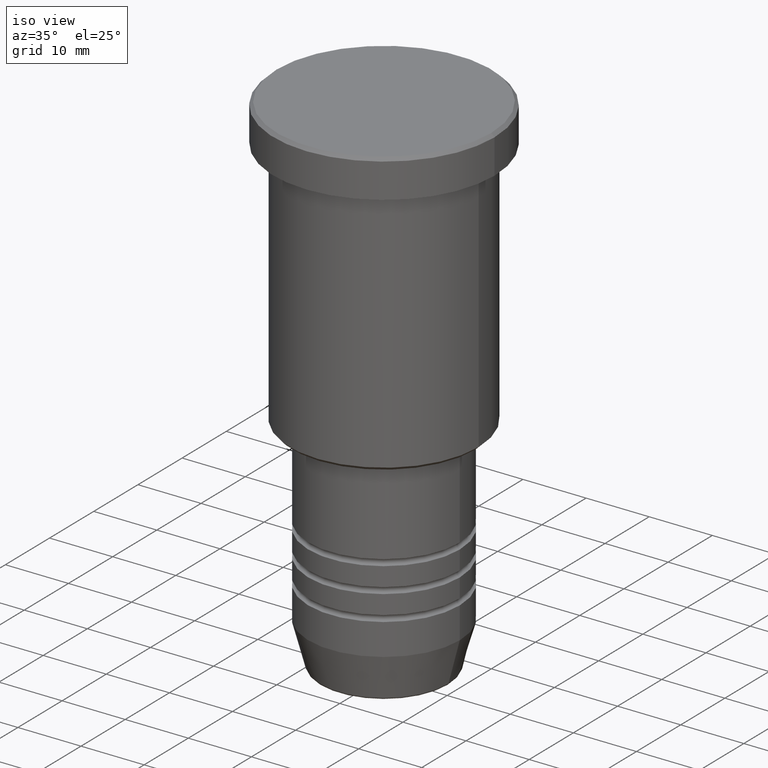
[diagram: clean part render]
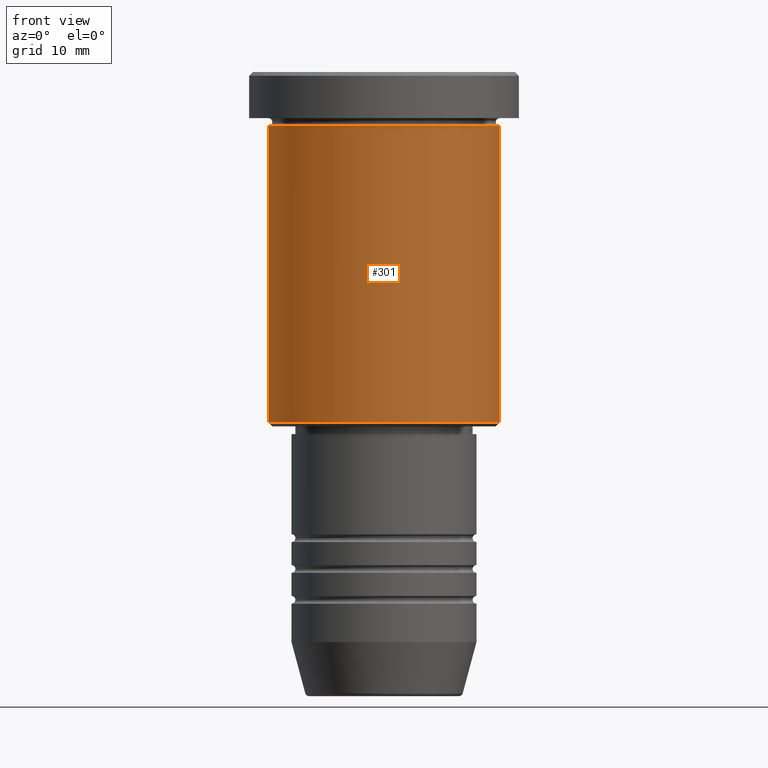
[diagram: tour spotlight — one face highlighted and labeled with its STEP entity id]
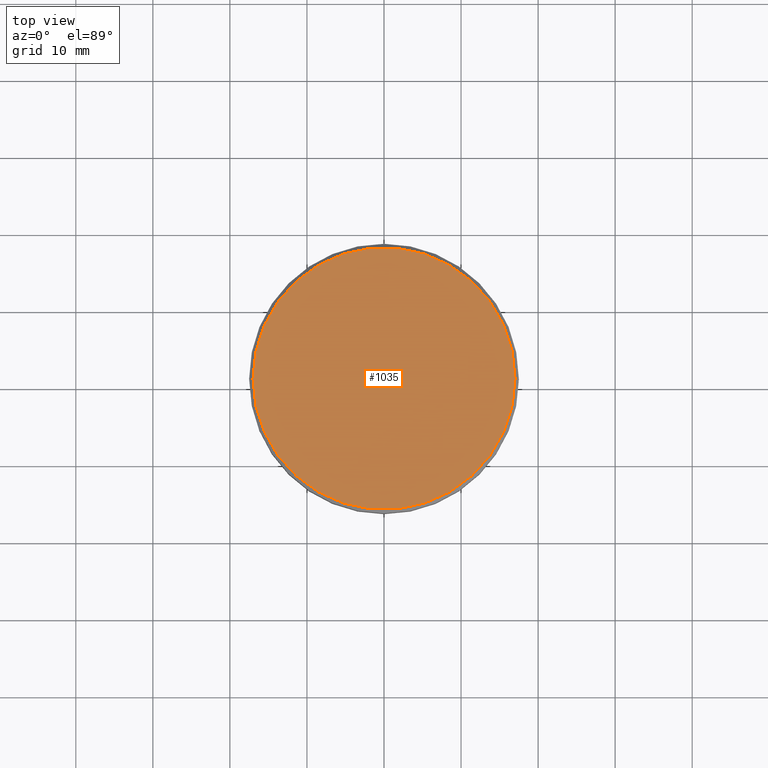
[diagram: tour spotlight — one face highlighted and labeled with its STEP entity id]
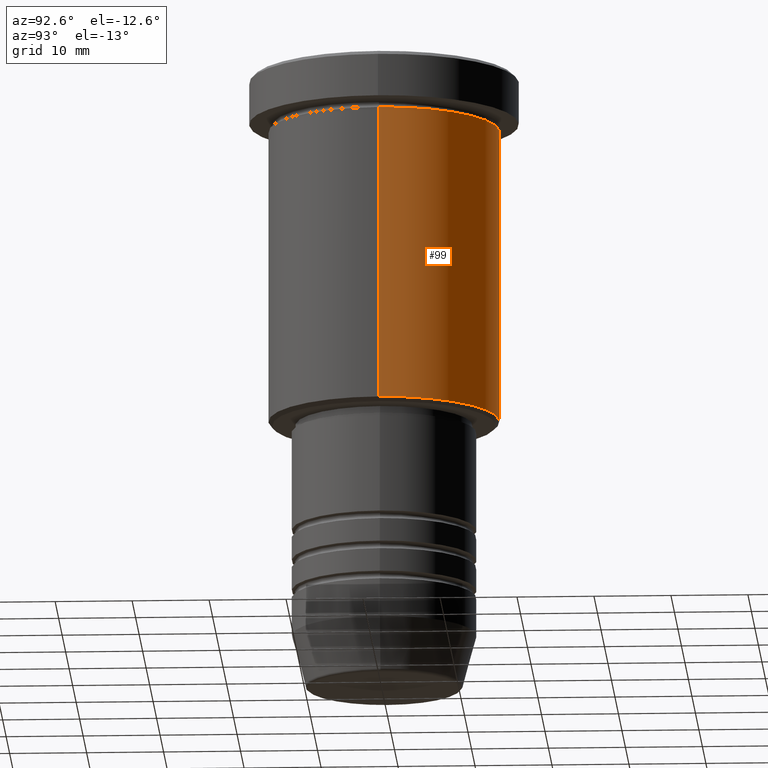
[diagram: tour spotlight — one face highlighted and labeled with its STEP entity id]
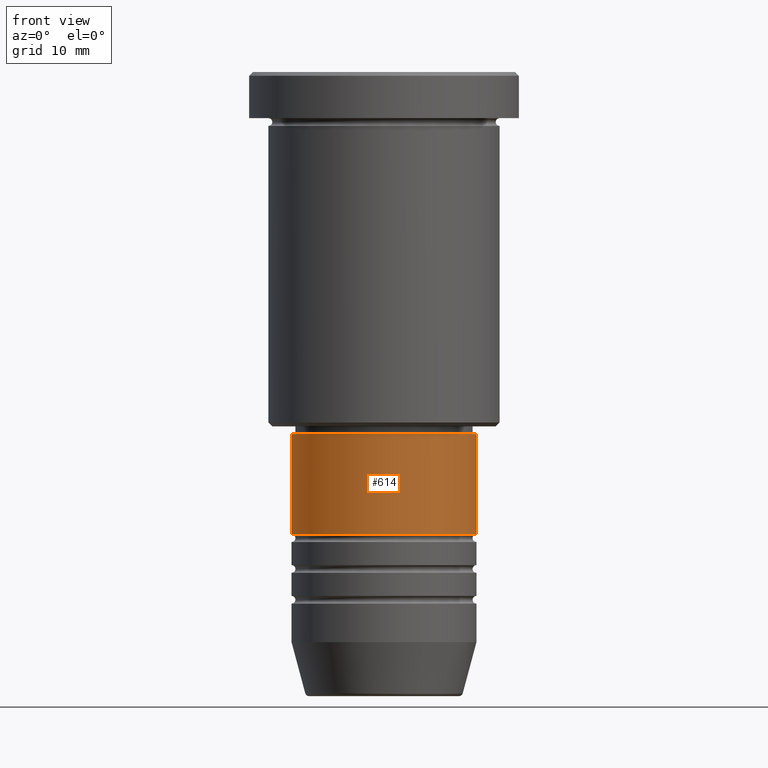
[diagram: tour spotlight — one face highlighted and labeled with its STEP entity id]
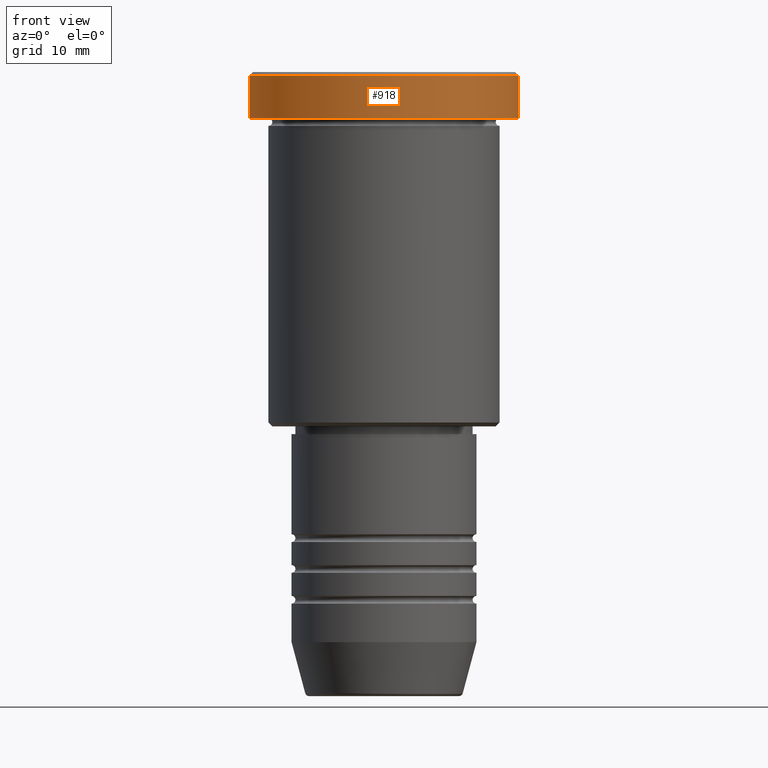
[diagram: tour spotlight — one face highlighted and labeled with its STEP entity id]
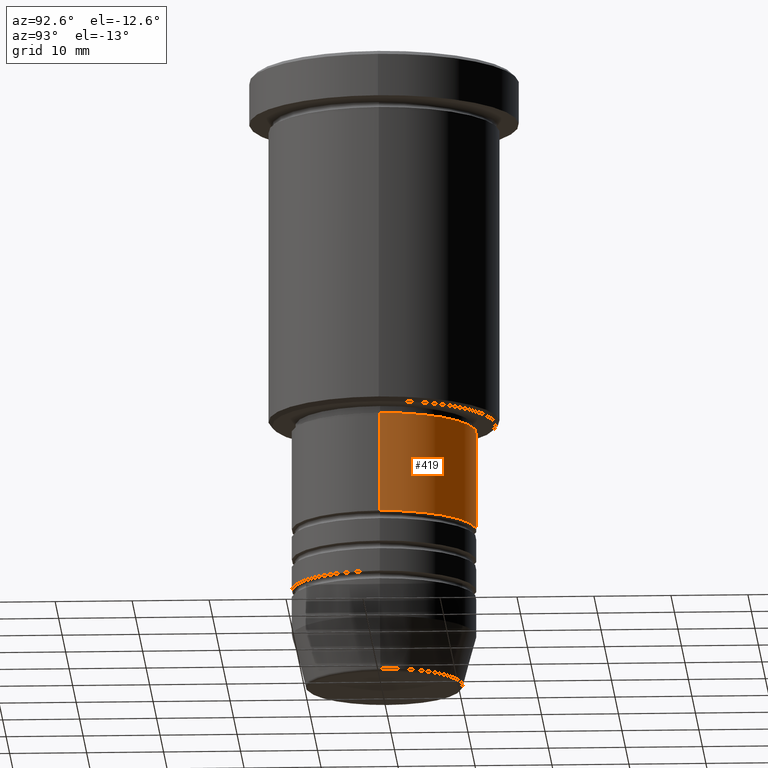
[diagram: tour spotlight — one face highlighted and labeled with its STEP entity id]
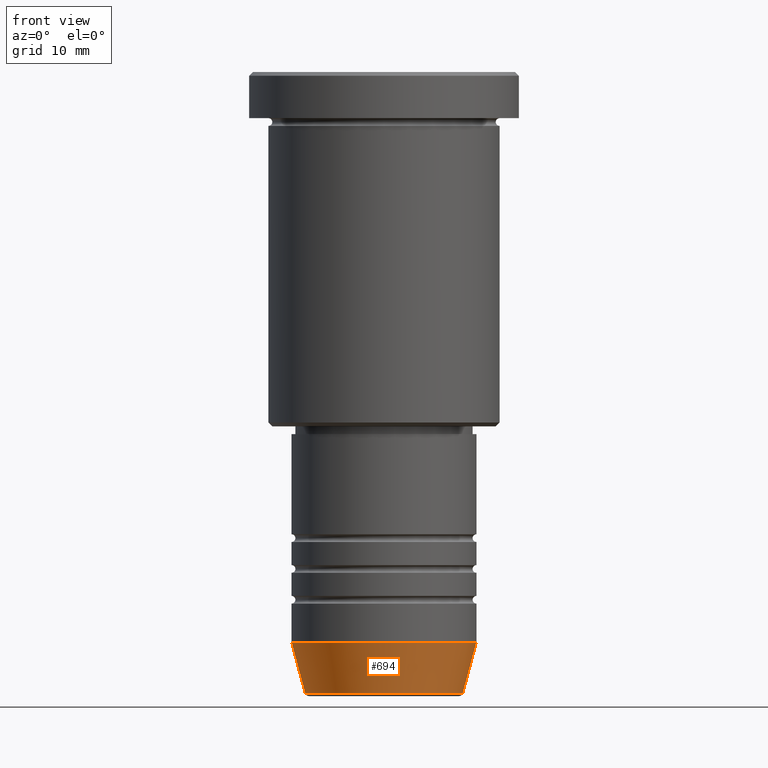
[diagram: tour spotlight — one face highlighted and labeled with its STEP entity id]
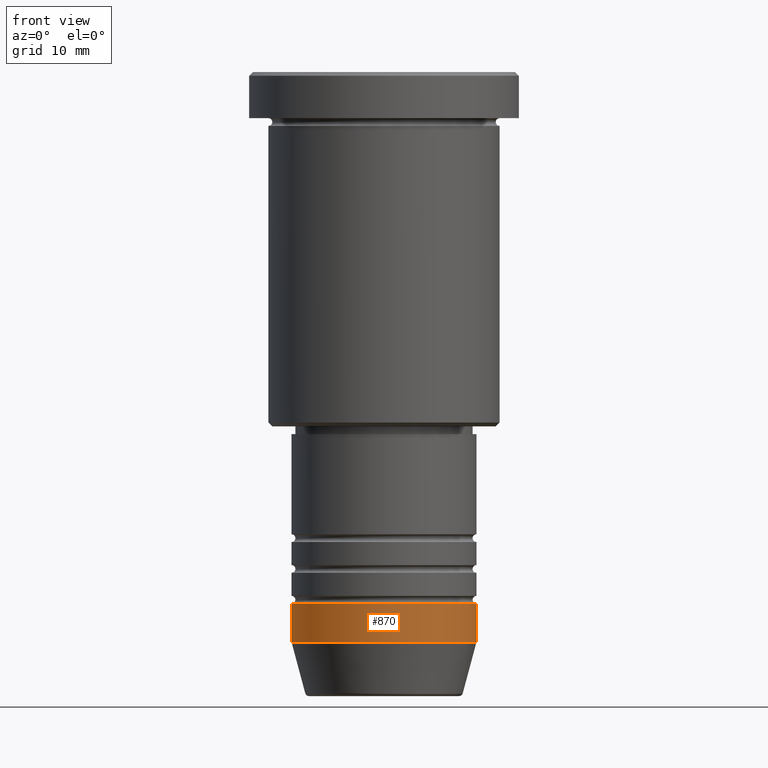
[diagram: tour spotlight — one face highlighted and labeled with its STEP entity id]
A machine part: a face-by-face anatomy tour. The part has 43 B-rep faces; the first image is the clean iso view, then the 8 largest visible faces are spotlighted one at a time (largest first), each with its STEP entity span.

Face 1 — front view, entity #301. In plain terms, the highlighted cylindrical surface (partial cylindrical patch) has radius 15 mm, axis along (-0, -0, 1).
Definition (entity closure, byte-faithful):
#29 = AXIS2_PLACEMENT_3D ( 'NONE', #166, #701, #1076 ) ;
#66 = FACE_OUTER_BOUND ( 'NONE', #305, .T. ) ;
#82 = ORIENTED_EDGE ( 'NONE', *, *, #225, .T. ) ;
#84 = DIRECTION ( 'NONE',  ( -0.000000000000000000, -0.000000000000000000, 1.000000000000000000 ) ) ;
#96 = DIRECTION ( 'NONE',  ( -0.000000000000000000, -0.000000000000000000, 1.000000000000000000 ) ) ;
#131 = VERTEX_POINT ( 'NONE', #860 ) ;
#166 = CARTESIAN_POINT ( 'NONE',  ( 0.000000000000000000, 0.000000000000000000, -45.50000000000000711 ) ) ;
#173 = CARTESIAN_POINT ( 'NONE',  ( 0.000000000000000000, 0.000000000000000000, 0.000000000000000000 ) ) ;
#181 = CIRCLE ( 'NONE', #627, 15.00000000000000000 ) ;
#225 = EDGE_CURVE ( 'NONE', #1039, #384, #814, .T. ) ;
#269 = VERTEX_POINT ( 'NONE', #906 ) ;
#286 = CARTESIAN_POINT ( 'NONE',  ( -15.00000000000000000, 1.836970198721029589E-15, 0.000000000000000000 ) ) ;
#301 = ADVANCED_FACE ( 'NONE', ( #66 ), #884, .T. ) ;
#305 = EDGE_LOOP ( 'NONE', ( #1003, #1173, #82, #850 ) ) ;
#384 = VERTEX_POINT ( 'NONE', #637 ) ;
#458 = EDGE_CURVE ( 'NONE', #269, #131, #845, .T. ) ;
#612 = DIRECTION ( 'NONE',  ( 1.000000000000000000, 0.000000000000000000, 0.000000000000000000 ) ) ;
#620 = VECTOR ( 'NONE', #84, 1000.000000000000000 ) ;
#627 = AXIS2_PLACEMENT_3D ( 'NONE', #919, #96, #1108 ) ;
#637 = CARTESIAN_POINT ( 'NONE',  ( 15.00000000000000000, 0.000000000000000000, -6.999999999999995559 ) ) ;
#696 = CARTESIAN_POINT ( 'NONE',  ( 15.00000000000000000, 0.000000000000000000, 0.000000000000000000 ) ) ;
#701 = DIRECTION ( 'NONE',  ( -0.000000000000000000, -0.000000000000000000, 1.000000000000000000 ) ) ;
#717 = DIRECTION ( 'NONE',  ( -0.000000000000000000, -0.000000000000000000, 1.000000000000000000 ) ) ;
#776 = AXIS2_PLACEMENT_3D ( 'NONE', #173, #717, #612 ) ;
#814 = LINE ( 'NONE', #696, #620 ) ;
#845 = LINE ( 'NONE', #286, #892 ) ;
#850 = ORIENTED_EDGE ( 'NONE', *, *, #1149, .F. ) ;
#860 = CARTESIAN_POINT ( 'NONE',  ( -15.00000000000000000, 1.836970198721029589E-15, -6.999999999999995559 ) ) ;
#884 = CYLINDRICAL_SURFACE ( 'NONE', #776, 15.00000000000000000 ) ;
#892 = VECTOR ( 'NONE', #1117, 1000.000000000000000 ) ;
#906 = CARTESIAN_POINT ( 'NONE',  ( -15.00000000000000000, 1.836970198721029589E-15, -45.50000000000000711 ) ) ;
#919 = CARTESIAN_POINT ( 'NONE',  ( 0.000000000000000000, 0.000000000000000000, -6.999999999999995559 ) ) ;
#964 = CARTESIAN_POINT ( 'NONE',  ( 15.00000000000000000, 0.000000000000000000, -45.50000000000000711 ) ) ;
#993 = EDGE_CURVE ( 'NONE', #269, #1039, #1142, .T. ) ;
#1003 = ORIENTED_EDGE ( 'NONE', *, *, #458, .F. ) ;
#1039 = VERTEX_POINT ( 'NONE', #964 ) ;
#1076 = DIRECTION ( 'NONE',  ( -1.000000000000000000, 0.000000000000000000, 0.000000000000000000 ) ) ;
#1108 = DIRECTION ( 'NONE',  ( 1.000000000000000000, 0.000000000000000000, 0.000000000000000000 ) ) ;
#1117 = DIRECTION ( 'NONE',  ( -0.000000000000000000, -0.000000000000000000, 1.000000000000000000 ) ) ;
#1142 = CIRCLE ( 'NONE', #29, 15.00000000000000000 ) ;
#1149 = EDGE_CURVE ( 'NONE', #131, #384, #181, .T. ) ;
#1173 = ORIENTED_EDGE ( 'NONE', *, *, #993, .T. ) ;

Face 2 — top view, entity #1035. In plain terms, the highlighted planar face has unit normal (0, -0, 1).
Definition (entity closure, byte-faithful):
#61 = ORIENTED_EDGE ( 'NONE', *, *, #924, .T. ) ;
#104 = VERTEX_POINT ( 'NONE', #581 ) ;
#224 = EDGE_LOOP ( 'NONE', ( #335, #61 ) ) ;
#231 = CARTESIAN_POINT ( 'NONE',  ( 0.000000000000000000, 0.000000000000000000, 0.000000000000000000 ) ) ;
#237 = DIRECTION ( 'NONE',  ( -0.000000000000000000, -0.000000000000000000, 1.000000000000000000 ) ) ;
#282 = AXIS2_PLACEMENT_3D ( 'NONE', #667, #1047, #946 ) ;
#299 = AXIS2_PLACEMENT_3D ( 'NONE', #1055, #237, #424 ) ;
#335 = ORIENTED_EDGE ( 'NONE', *, *, #1113, .T. ) ;
#420 = DIRECTION ( 'NONE',  ( 1.000000000000000000, 0.000000000000000000, 0.000000000000000000 ) ) ;
#424 = DIRECTION ( 'NONE',  ( 1.000000000000000000, 0.000000000000000000, 0.000000000000000000 ) ) ;
#465 = CIRCLE ( 'NONE', #299, 17.00000000000000000 ) ;
#505 = CIRCLE ( 'NONE', #282, 17.00000000000000000 ) ;
#526 = AXIS2_PLACEMENT_3D ( 'NONE', #231, #1063, #420 ) ;
#581 = CARTESIAN_POINT ( 'NONE',  ( -17.00000000000000000, 0.000000000000000000, 0.000000000000000000 ) ) ;
#596 = FACE_OUTER_BOUND ( 'NONE', #224, .T. ) ;
#667 = CARTESIAN_POINT ( 'NONE',  ( 0.000000000000000000, 0.000000000000000000, 0.000000000000000000 ) ) ;
#695 = VERTEX_POINT ( 'NONE', #904 ) ;
#904 = CARTESIAN_POINT ( 'NONE',  ( 17.00000000000000000, 2.112515728529184067E-15, 0.000000000000000000 ) ) ;
#924 = EDGE_CURVE ( 'NONE', #695, #104, #505, .T. ) ;
#946 = DIRECTION ( 'NONE',  ( 1.000000000000000000, 0.000000000000000000, 0.000000000000000000 ) ) ;
#985 = PLANE ( 'NONE',  #526 ) ;
#1035 = ADVANCED_FACE ( 'NONE', ( #596 ), #985, .T. ) ;
#1047 = DIRECTION ( 'NONE',  ( -0.000000000000000000, -0.000000000000000000, 1.000000000000000000 ) ) ;
#1055 = CARTESIAN_POINT ( 'NONE',  ( 0.000000000000000000, 0.000000000000000000, 0.000000000000000000 ) ) ;
#1063 = DIRECTION ( 'NONE',  ( 0.000000000000000000, -0.000000000000000000, 1.000000000000000000 ) ) ;
#1113 = EDGE_CURVE ( 'NONE', #104, #695, #465, .T. ) ;

Face 3 — auxiliary view, entity #99. In plain terms, the highlighted cylindrical surface (partial cylindrical patch) has radius 15 mm, axis along (-0, -0, 1).
Definition (entity closure, byte-faithful):
#67 = AXIS2_PLACEMENT_3D ( 'NONE', #132, #114, #496 ) ;
#84 = DIRECTION ( 'NONE',  ( -0.000000000000000000, -0.000000000000000000, 1.000000000000000000 ) ) ;
#99 = ADVANCED_FACE ( 'NONE', ( #323 ), #417, .T. ) ;
#114 = DIRECTION ( 'NONE',  ( -0.000000000000000000, -0.000000000000000000, 1.000000000000000000 ) ) ;
#131 = VERTEX_POINT ( 'NONE', #860 ) ;
#132 = CARTESIAN_POINT ( 'NONE',  ( 0.000000000000000000, 0.000000000000000000, -6.999999999999995559 ) ) ;
#134 = DIRECTION ( 'NONE',  ( -0.000000000000000000, -0.000000000000000000, 1.000000000000000000 ) ) ;
#225 = EDGE_CURVE ( 'NONE', #1039, #384, #814, .T. ) ;
#233 = CARTESIAN_POINT ( 'NONE',  ( 0.000000000000000000, 0.000000000000000000, -45.50000000000000711 ) ) ;
#269 = VERTEX_POINT ( 'NONE', #906 ) ;
#286 = CARTESIAN_POINT ( 'NONE',  ( -15.00000000000000000, 1.836970198721029589E-15, 0.000000000000000000 ) ) ;
#313 = DIRECTION ( 'NONE',  ( -0.000000000000000000, -0.000000000000000000, 1.000000000000000000 ) ) ;
#323 = FACE_OUTER_BOUND ( 'NONE', #495, .T. ) ;
#384 = VERTEX_POINT ( 'NONE', #637 ) ;
#391 = ORIENTED_EDGE ( 'NONE', *, *, #944, .F. ) ;
#417 = CYLINDRICAL_SURFACE ( 'NONE', #500, 15.00000000000000000 ) ;
#458 = EDGE_CURVE ( 'NONE', #269, #131, #845, .T. ) ;
#494 = DIRECTION ( 'NONE',  ( 1.000000000000000000, 0.000000000000000000, 0.000000000000000000 ) ) ;
#495 = EDGE_LOOP ( 'NONE', ( #1182, #809, #391, #903 ) ) ;
#496 = DIRECTION ( 'NONE',  ( 1.000000000000000000, 0.000000000000000000, 0.000000000000000000 ) ) ;
#500 = AXIS2_PLACEMENT_3D ( 'NONE', #594, #313, #494 ) ;
#594 = CARTESIAN_POINT ( 'NONE',  ( 0.000000000000000000, 0.000000000000000000, 0.000000000000000000 ) ) ;
#620 = VECTOR ( 'NONE', #84, 1000.000000000000000 ) ;
#636 = EDGE_CURVE ( 'NONE', #1039, #269, #722, .T. ) ;
#637 = CARTESIAN_POINT ( 'NONE',  ( 15.00000000000000000, 0.000000000000000000, -6.999999999999995559 ) ) ;
#690 = DIRECTION ( 'NONE',  ( -1.000000000000000000, 0.000000000000000000, 0.000000000000000000 ) ) ;
#696 = CARTESIAN_POINT ( 'NONE',  ( 15.00000000000000000, 0.000000000000000000, 0.000000000000000000 ) ) ;
#722 = CIRCLE ( 'NONE', #1102, 15.00000000000000000 ) ;
#802 = CIRCLE ( 'NONE', #67, 15.00000000000000000 ) ;
#809 = ORIENTED_EDGE ( 'NONE', *, *, #458, .T. ) ;
#814 = LINE ( 'NONE', #696, #620 ) ;
#845 = LINE ( 'NONE', #286, #892 ) ;
#860 = CARTESIAN_POINT ( 'NONE',  ( -15.00000000000000000, 1.836970198721029589E-15, -6.999999999999995559 ) ) ;
#892 = VECTOR ( 'NONE', #1117, 1000.000000000000000 ) ;
#903 = ORIENTED_EDGE ( 'NONE', *, *, #225, .F. ) ;
#906 = CARTESIAN_POINT ( 'NONE',  ( -15.00000000000000000, 1.836970198721029589E-15, -45.50000000000000711 ) ) ;
#944 = EDGE_CURVE ( 'NONE', #384, #131, #802, .T. ) ;
#964 = CARTESIAN_POINT ( 'NONE',  ( 15.00000000000000000, 0.000000000000000000, -45.50000000000000711 ) ) ;
#1039 = VERTEX_POINT ( 'NONE', #964 ) ;
#1102 = AXIS2_PLACEMENT_3D ( 'NONE', #233, #134, #690 ) ;
#1117 = DIRECTION ( 'NONE',  ( -0.000000000000000000, -0.000000000000000000, 1.000000000000000000 ) ) ;
#1182 = ORIENTED_EDGE ( 'NONE', *, *, #636, .T. ) ;

Face 4 — front view, entity #614. In plain terms, the highlighted cylindrical surface (partial cylindrical patch) has radius 12 mm, axis along (-0, -0, 1).
Definition (entity closure, byte-faithful):
#34 = EDGE_CURVE ( 'NONE', #423, #825, #869, .T. ) ;
#42 = CARTESIAN_POINT ( 'NONE',  ( 0.000000000000000000, 0.000000000000000000, -47.00000000000002842 ) ) ;
#49 = CARTESIAN_POINT ( 'NONE',  ( -12.00000000000000000, 1.469576158976823947E-15, -47.00000000000002842 ) ) ;
#91 = EDGE_CURVE ( 'NONE', #825, #726, #130, .T. ) ;
#95 = CARTESIAN_POINT ( 'NONE',  ( -12.00000000000000000, 1.469576158976823947E-15, -59.99999999999990052 ) ) ;
#106 = CARTESIAN_POINT ( 'NONE',  ( 12.00000000000000000, 0.000000000000000000, -59.99999999999990052 ) ) ;
#111 = CARTESIAN_POINT ( 'NONE',  ( -12.00000000000000000, 1.469576158976823947E-15, 0.000000000000000000 ) ) ;
#122 = VECTOR ( 'NONE', #228, 1000.000000000000000 ) ;
#130 = LINE ( 'NONE', #872, #236 ) ;
#214 = DIRECTION ( 'NONE',  ( -0.000000000000000000, -0.000000000000000000, 1.000000000000000000 ) ) ;
#228 = DIRECTION ( 'NONE',  ( -0.000000000000000000, -0.000000000000000000, 1.000000000000000000 ) ) ;
#236 = VECTOR ( 'NONE', #214, 1000.000000000000000 ) ;
#258 = EDGE_LOOP ( 'NONE', ( #989, #716, #1025, #438 ) ) ;
#260 = CARTESIAN_POINT ( 'NONE',  ( 12.00000000000000000, 0.000000000000000000, -47.00000000000002842 ) ) ;
#300 = DIRECTION ( 'NONE',  ( 1.000000000000000000, 0.000000000000000000, 0.000000000000000000 ) ) ;
#388 = AXIS2_PLACEMENT_3D ( 'NONE', #692, #615, #970 ) ;
#423 = VERTEX_POINT ( 'NONE', #95 ) ;
#438 = ORIENTED_EDGE ( 'NONE', *, *, #911, .F. ) ;
#493 = CARTESIAN_POINT ( 'NONE',  ( 0.000000000000000000, 0.000000000000000000, 0.000000000000000000 ) ) ;
#569 = EDGE_CURVE ( 'NONE', #423, #1046, #942, .T. ) ;
#589 = FACE_OUTER_BOUND ( 'NONE', #258, .T. ) ;
#614 = ADVANCED_FACE ( 'NONE', ( #589 ), #957, .T. ) ;
#615 = DIRECTION ( 'NONE',  ( -0.000000000000000000, -0.000000000000000000, 1.000000000000000000 ) ) ;
#692 = CARTESIAN_POINT ( 'NONE',  ( 0.000000000000000000, 0.000000000000000000, -59.99999999999990052 ) ) ;
#716 = ORIENTED_EDGE ( 'NONE', *, *, #34, .T. ) ;
#726 = VERTEX_POINT ( 'NONE', #260 ) ;
#762 = DIRECTION ( 'NONE',  ( -0.000000000000000000, -0.000000000000000000, 1.000000000000000000 ) ) ;
#800 = AXIS2_PLACEMENT_3D ( 'NONE', #493, #863, #868 ) ;
#825 = VERTEX_POINT ( 'NONE', #106 ) ;
#863 = DIRECTION ( 'NONE',  ( -0.000000000000000000, -0.000000000000000000, 1.000000000000000000 ) ) ;
#868 = DIRECTION ( 'NONE',  ( 1.000000000000000000, 0.000000000000000000, 0.000000000000000000 ) ) ;
#869 = CIRCLE ( 'NONE', #388, 12.00000000000000000 ) ;
#872 = CARTESIAN_POINT ( 'NONE',  ( 12.00000000000000000, 0.000000000000000000, 0.000000000000000000 ) ) ;
#895 = AXIS2_PLACEMENT_3D ( 'NONE', #42, #762, #300 ) ;
#911 = EDGE_CURVE ( 'NONE', #1046, #726, #950, .T. ) ;
#942 = LINE ( 'NONE', #111, #122 ) ;
#950 = CIRCLE ( 'NONE', #895, 12.00000000000000000 ) ;
#957 = CYLINDRICAL_SURFACE ( 'NONE', #800, 12.00000000000000000 ) ;
#970 = DIRECTION ( 'NONE',  ( 1.000000000000000000, 0.000000000000000000, 0.000000000000000000 ) ) ;
#989 = ORIENTED_EDGE ( 'NONE', *, *, #569, .F. ) ;
#1025 = ORIENTED_EDGE ( 'NONE', *, *, #91, .T. ) ;
#1046 = VERTEX_POINT ( 'NONE', #49 ) ;

Face 5 — front view, entity #918. In plain terms, the highlighted cylindrical surface (partial cylindrical patch) has radius 17.5 mm, axis along (-0, -0, 1).
Definition (entity closure, byte-faithful):
#8 = AXIS2_PLACEMENT_3D ( 'NONE', #1143, #785, #143 ) ;
#40 = VERTEX_POINT ( 'NONE', #332 ) ;
#87 = VECTOR ( 'NONE', #1146, 1000.000000000000000 ) ;
#110 = DIRECTION ( 'NONE',  ( 1.000000000000000000, 0.000000000000000000, 0.000000000000000000 ) ) ;
#143 = DIRECTION ( 'NONE',  ( 1.000000000000000000, 0.000000000000000000, 0.000000000000000000 ) ) ;
#162 = VECTOR ( 'NONE', #467, 1000.000000000000000 ) ;
#169 = CARTESIAN_POINT ( 'NONE',  ( 17.50000000000000000, 0.000000000000000000, -0.5000000000000142109 ) ) ;
#172 = EDGE_CURVE ( 'NONE', #1056, #40, #757, .T. ) ;
#193 = CARTESIAN_POINT ( 'NONE',  ( -17.50000000000000000, 2.143131898507868248E-15, 0.000000000000000000 ) ) ;
#197 = CIRCLE ( 'NONE', #1083, 17.50000000000000000 ) ;
#218 = VERTEX_POINT ( 'NONE', #169 ) ;
#220 = DIRECTION ( 'NONE',  ( -0.000000000000000000, -0.000000000000000000, 1.000000000000000000 ) ) ;
#226 = CARTESIAN_POINT ( 'NONE',  ( 0.000000000000000000, 0.000000000000000000, -0.5000000000000142109 ) ) ;
#227 = EDGE_LOOP ( 'NONE', ( #548, #755, #956, #731 ) ) ;
#319 = CARTESIAN_POINT ( 'NONE',  ( 0.000000000000000000, 0.000000000000000000, 0.000000000000000000 ) ) ;
#332 = CARTESIAN_POINT ( 'NONE',  ( 17.50000000000000000, 0.000000000000000000, -5.999999999999995559 ) ) ;
#410 = CYLINDRICAL_SURFACE ( 'NONE', #646, 17.50000000000000000 ) ;
#467 = DIRECTION ( 'NONE',  ( -0.000000000000000000, -0.000000000000000000, 1.000000000000000000 ) ) ;
#491 = FACE_OUTER_BOUND ( 'NONE', #227, .T. ) ;
#548 = ORIENTED_EDGE ( 'NONE', *, *, #815, .F. ) ;
#583 = EDGE_CURVE ( 'NONE', #40, #218, #673, .T. ) ;
#592 = DIRECTION ( 'NONE',  ( 0.000000000000000000, 0.000000000000000000, -1.000000000000000000 ) ) ;
#646 = AXIS2_PLACEMENT_3D ( 'NONE', #319, #220, #941 ) ;
#673 = LINE ( 'NONE', #1140, #87 ) ;
#731 = ORIENTED_EDGE ( 'NONE', *, *, #862, .T. ) ;
#755 = ORIENTED_EDGE ( 'NONE', *, *, #172, .T. ) ;
#757 = CIRCLE ( 'NONE', #8, 17.50000000000000000 ) ;
#770 = VERTEX_POINT ( 'NONE', #1009 ) ;
#785 = DIRECTION ( 'NONE',  ( -0.000000000000000000, -0.000000000000000000, 1.000000000000000000 ) ) ;
#815 = EDGE_CURVE ( 'NONE', #1056, #770, #1014, .T. ) ;
#862 = EDGE_CURVE ( 'NONE', #218, #770, #197, .T. ) ;
#918 = ADVANCED_FACE ( 'NONE', ( #491 ), #410, .T. ) ;
#941 = DIRECTION ( 'NONE',  ( 1.000000000000000000, 0.000000000000000000, 0.000000000000000000 ) ) ;
#956 = ORIENTED_EDGE ( 'NONE', *, *, #583, .T. ) ;
#1009 = CARTESIAN_POINT ( 'NONE',  ( -17.50000000000000000, 2.143131898507868248E-15, -0.5000000000000142109 ) ) ;
#1014 = LINE ( 'NONE', #193, #162 ) ;
#1056 = VERTEX_POINT ( 'NONE', #1070 ) ;
#1070 = CARTESIAN_POINT ( 'NONE',  ( -17.50000000000000000, 2.143131898507868248E-15, -5.999999999999995559 ) ) ;
#1083 = AXIS2_PLACEMENT_3D ( 'NONE', #226, #592, #110 ) ;
#1140 = CARTESIAN_POINT ( 'NONE',  ( 17.50000000000000000, 0.000000000000000000, 0.000000000000000000 ) ) ;
#1143 = CARTESIAN_POINT ( 'NONE',  ( 0.000000000000000000, 0.000000000000000000, -5.999999999999995559 ) ) ;
#1146 = DIRECTION ( 'NONE',  ( -0.000000000000000000, -0.000000000000000000, 1.000000000000000000 ) ) ;

Face 6 — auxiliary view, entity #419. In plain terms, the highlighted cylindrical surface (partial cylindrical patch) has radius 12 mm, axis along (-0, -0, 1).
Definition (entity closure, byte-faithful):
#49 = CARTESIAN_POINT ( 'NONE',  ( -12.00000000000000000, 1.469576158976823947E-15, -47.00000000000002842 ) ) ;
#53 = EDGE_CURVE ( 'NONE', #726, #1046, #117, .T. ) ;
#54 = CARTESIAN_POINT ( 'NONE',  ( 0.000000000000000000, 0.000000000000000000, -47.00000000000002842 ) ) ;
#56 = ORIENTED_EDGE ( 'NONE', *, *, #185, .T. ) ;
#91 = EDGE_CURVE ( 'NONE', #825, #726, #130, .T. ) ;
#95 = CARTESIAN_POINT ( 'NONE',  ( -12.00000000000000000, 1.469576158976823947E-15, -59.99999999999990052 ) ) ;
#106 = CARTESIAN_POINT ( 'NONE',  ( 12.00000000000000000, 0.000000000000000000, -59.99999999999990052 ) ) ;
#108 = FACE_OUTER_BOUND ( 'NONE', #1109, .T. ) ;
#111 = CARTESIAN_POINT ( 'NONE',  ( -12.00000000000000000, 1.469576158976823947E-15, 0.000000000000000000 ) ) ;
#116 = DIRECTION ( 'NONE',  ( 1.000000000000000000, 0.000000000000000000, 0.000000000000000000 ) ) ;
#117 = CIRCLE ( 'NONE', #638, 12.00000000000000000 ) ;
#122 = VECTOR ( 'NONE', #228, 1000.000000000000000 ) ;
#130 = LINE ( 'NONE', #872, #236 ) ;
#185 = EDGE_CURVE ( 'NONE', #825, #423, #796, .T. ) ;
#214 = DIRECTION ( 'NONE',  ( -0.000000000000000000, -0.000000000000000000, 1.000000000000000000 ) ) ;
#228 = DIRECTION ( 'NONE',  ( -0.000000000000000000, -0.000000000000000000, 1.000000000000000000 ) ) ;
#236 = VECTOR ( 'NONE', #214, 1000.000000000000000 ) ;
#260 = CARTESIAN_POINT ( 'NONE',  ( 12.00000000000000000, 0.000000000000000000, -47.00000000000002842 ) ) ;
#284 = ORIENTED_EDGE ( 'NONE', *, *, #91, .F. ) ;
#315 = AXIS2_PLACEMENT_3D ( 'NONE', #507, #574, #116 ) ;
#364 = DIRECTION ( 'NONE',  ( 1.000000000000000000, 0.000000000000000000, 0.000000000000000000 ) ) ;
#380 = CYLINDRICAL_SURFACE ( 'NONE', #1018, 12.00000000000000000 ) ;
#402 = ORIENTED_EDGE ( 'NONE', *, *, #53, .F. ) ;
#418 = DIRECTION ( 'NONE',  ( -0.000000000000000000, -0.000000000000000000, 1.000000000000000000 ) ) ;
#419 = ADVANCED_FACE ( 'NONE', ( #108 ), #380, .T. ) ;
#423 = VERTEX_POINT ( 'NONE', #95 ) ;
#507 = CARTESIAN_POINT ( 'NONE',  ( 0.000000000000000000, 0.000000000000000000, -59.99999999999990052 ) ) ;
#569 = EDGE_CURVE ( 'NONE', #423, #1046, #942, .T. ) ;
#574 = DIRECTION ( 'NONE',  ( -0.000000000000000000, -0.000000000000000000, 1.000000000000000000 ) ) ;
#638 = AXIS2_PLACEMENT_3D ( 'NONE', #54, #418, #1069 ) ;
#644 = DIRECTION ( 'NONE',  ( -0.000000000000000000, -0.000000000000000000, 1.000000000000000000 ) ) ;
#726 = VERTEX_POINT ( 'NONE', #260 ) ;
#796 = CIRCLE ( 'NONE', #315, 12.00000000000000000 ) ;
#822 = CARTESIAN_POINT ( 'NONE',  ( 0.000000000000000000, 0.000000000000000000, 0.000000000000000000 ) ) ;
#825 = VERTEX_POINT ( 'NONE', #106 ) ;
#872 = CARTESIAN_POINT ( 'NONE',  ( 12.00000000000000000, 0.000000000000000000, 0.000000000000000000 ) ) ;
#942 = LINE ( 'NONE', #111, #122 ) ;
#984 = ORIENTED_EDGE ( 'NONE', *, *, #569, .T. ) ;
#1018 = AXIS2_PLACEMENT_3D ( 'NONE', #822, #644, #364 ) ;
#1046 = VERTEX_POINT ( 'NONE', #49 ) ;
#1069 = DIRECTION ( 'NONE',  ( 1.000000000000000000, 0.000000000000000000, 0.000000000000000000 ) ) ;
#1109 = EDGE_LOOP ( 'NONE', ( #56, #984, #402, #284 ) ) ;

Face 7 — front view, entity #694. In plain terms, the highlighted conical surface has half-angle 15 deg.
Definition (entity closure, byte-faithful):
#5 = EDGE_CURVE ( 'NONE', #568, #502, #59, .T. ) ;
#11 = ORIENTED_EDGE ( 'NONE', *, *, #839, .F. ) ;
#59 = LINE ( 'NONE', #621, #1081 ) ;
#97 = EDGE_LOOP ( 'NONE', ( #515, #625, #1050, #11 ) ) ;
#148 = DIRECTION ( 'NONE',  ( 1.000000000000000000, 0.000000000000000000, 0.000000000000000000 ) ) ;
#201 = CARTESIAN_POINT ( 'NONE',  ( 10.22365507213718949, 0.000000000000000000, -80.62940952255128479 ) ) ;
#211 = CARTESIAN_POINT ( 'NONE',  ( 12.00000000000000000, 0.000000000000000000, -74.00000000000001421 ) ) ;
#219 = AXIS2_PLACEMENT_3D ( 'NONE', #1088, #965, #148 ) ;
#232 = EDGE_CURVE ( 'NONE', #928, #913, #890, .T. ) ;
#262 = AXIS2_PLACEMENT_3D ( 'NONE', #1092, #915, #734 ) ;
#272 = DIRECTION ( 'NONE',  ( -0.000000000000000000, -0.000000000000000000, 1.000000000000000000 ) ) ;
#278 = CIRCLE ( 'NONE', #797, 10.22365507213718949 ) ;
#431 = DIRECTION ( 'NONE',  ( 0.2588190451025213501, 0.000000000000000000, 0.9659258262890680902 ) ) ;
#456 = CARTESIAN_POINT ( 'NONE',  ( -12.00000000000000000, 1.469576158976823947E-15, -74.00000000000001421 ) ) ;
#469 = EDGE_CURVE ( 'NONE', #568, #928, #278, .T. ) ;
#502 = VERTEX_POINT ( 'NONE', #456 ) ;
#515 = ORIENTED_EDGE ( 'NONE', *, *, #5, .F. ) ;
#545 = DIRECTION ( 'NONE',  ( 1.000000000000000000, 0.000000000000000000, 0.000000000000000000 ) ) ;
#568 = VERTEX_POINT ( 'NONE', #573 ) ;
#570 = CARTESIAN_POINT ( 'NONE',  ( 0.000000000000000000, 0.000000000000000000, -80.62940952255128479 ) ) ;
#573 = CARTESIAN_POINT ( 'NONE',  ( -10.22365507213718949, 1.360806402472382547E-15, -80.62940952255128479 ) ) ;
#582 = CONICAL_SURFACE ( 'NONE', #219, 12.00000000000000000, 0.2617993877991500740 ) ;
#621 = CARTESIAN_POINT ( 'NONE',  ( -12.00000000000000000, 1.469576158976823947E-15, -74.00000000000001421 ) ) ;
#625 = ORIENTED_EDGE ( 'NONE', *, *, #469, .T. ) ;
#694 = ADVANCED_FACE ( 'NONE', ( #987 ), #582, .T. ) ;
#734 = DIRECTION ( 'NONE',  ( 1.000000000000000000, 0.000000000000000000, 0.000000000000000000 ) ) ;
#774 = VECTOR ( 'NONE', #431, 1000.000000000000000 ) ;
#779 = CIRCLE ( 'NONE', #262, 12.00000000000000000 ) ;
#787 = DIRECTION ( 'NONE',  ( -0.2588190451025213501, 3.169619151431772337E-17, 0.9659258262890680902 ) ) ;
#797 = AXIS2_PLACEMENT_3D ( 'NONE', #570, #272, #545 ) ;
#839 = EDGE_CURVE ( 'NONE', #502, #913, #779, .T. ) ;
#890 = LINE ( 'NONE', #1167, #774 ) ;
#913 = VERTEX_POINT ( 'NONE', #211 ) ;
#915 = DIRECTION ( 'NONE',  ( -0.000000000000000000, -0.000000000000000000, 1.000000000000000000 ) ) ;
#928 = VERTEX_POINT ( 'NONE', #201 ) ;
#965 = DIRECTION ( 'NONE',  ( -0.000000000000000000, -0.000000000000000000, 1.000000000000000000 ) ) ;
#987 = FACE_OUTER_BOUND ( 'NONE', #97, .T. ) ;
#1050 = ORIENTED_EDGE ( 'NONE', *, *, #232, .T. ) ;
#1081 = VECTOR ( 'NONE', #787, 1000.000000000000000 ) ;
#1088 = CARTESIAN_POINT ( 'NONE',  ( 0.000000000000000000, 0.000000000000000000, -74.00000000000001421 ) ) ;
#1092 = CARTESIAN_POINT ( 'NONE',  ( 0.000000000000000000, 0.000000000000000000, -74.00000000000001421 ) ) ;
#1167 = CARTESIAN_POINT ( 'NONE',  ( 12.00000000000000000, 0.000000000000000000, -74.00000000000001421 ) ) ;

Face 8 — front view, entity #870. In plain terms, the highlighted cylindrical surface (partial cylindrical patch) has radius 12 mm, axis along (-0, -0, 1).
Definition (entity closure, byte-faithful):
#198 = ORIENTED_EDGE ( 'NONE', *, *, #939, .F. ) ;
#199 = AXIS2_PLACEMENT_3D ( 'NONE', #572, #385, #935 ) ;
#210 = ORIENTED_EDGE ( 'NONE', *, *, #857, .T. ) ;
#211 = CARTESIAN_POINT ( 'NONE',  ( 12.00000000000000000, 0.000000000000000000, -74.00000000000001421 ) ) ;
#262 = AXIS2_PLACEMENT_3D ( 'NONE', #1092, #915, #734 ) ;
#283 = CARTESIAN_POINT ( 'NONE',  ( -12.00000000000000000, 1.469576158976823947E-15, 0.000000000000000000 ) ) ;
#385 = DIRECTION ( 'NONE',  ( -0.000000000000000000, -0.000000000000000000, 1.000000000000000000 ) ) ;
#394 = LINE ( 'NONE', #672, #409 ) ;
#409 = VECTOR ( 'NONE', #1126, 1000.000000000000000 ) ;
#456 = CARTESIAN_POINT ( 'NONE',  ( -12.00000000000000000, 1.469576158976823947E-15, -74.00000000000001421 ) ) ;
#466 = VERTEX_POINT ( 'NONE', #556 ) ;
#502 = VERTEX_POINT ( 'NONE', #456 ) ;
#556 = CARTESIAN_POINT ( 'NONE',  ( -12.00000000000000000, 1.469576158976823947E-15, -69.00000000000000000 ) ) ;
#565 = VECTOR ( 'NONE', #648, 1000.000000000000000 ) ;
#572 = CARTESIAN_POINT ( 'NONE',  ( 0.000000000000000000, 0.000000000000000000, 0.000000000000000000 ) ) ;
#577 = DIRECTION ( 'NONE',  ( 1.000000000000000000, 0.000000000000000000, 0.000000000000000000 ) ) ;
#648 = DIRECTION ( 'NONE',  ( -0.000000000000000000, -0.000000000000000000, 1.000000000000000000 ) ) ;
#666 = VERTEX_POINT ( 'NONE', #899 ) ;
#672 = CARTESIAN_POINT ( 'NONE',  ( 12.00000000000000000, 0.000000000000000000, 0.000000000000000000 ) ) ;
#723 = CIRCLE ( 'NONE', #1104, 12.00000000000000000 ) ;
#734 = DIRECTION ( 'NONE',  ( 1.000000000000000000, 0.000000000000000000, 0.000000000000000000 ) ) ;
#737 = LINE ( 'NONE', #283, #565 ) ;
#739 = EDGE_LOOP ( 'NONE', ( #1155, #1144, #210, #198 ) ) ;
#779 = CIRCLE ( 'NONE', #262, 12.00000000000000000 ) ;
#783 = FACE_OUTER_BOUND ( 'NONE', #739, .T. ) ;
#839 = EDGE_CURVE ( 'NONE', #502, #913, #779, .T. ) ;
#857 = EDGE_CURVE ( 'NONE', #913, #666, #394, .T. ) ;
#870 = ADVANCED_FACE ( 'NONE', ( #783 ), #955, .T. ) ;
#899 = CARTESIAN_POINT ( 'NONE',  ( 12.00000000000000000, 0.000000000000000000, -69.00000000000000000 ) ) ;
#913 = VERTEX_POINT ( 'NONE', #211 ) ;
#915 = DIRECTION ( 'NONE',  ( -0.000000000000000000, -0.000000000000000000, 1.000000000000000000 ) ) ;
#935 = DIRECTION ( 'NONE',  ( 1.000000000000000000, 0.000000000000000000, 0.000000000000000000 ) ) ;
#939 = EDGE_CURVE ( 'NONE', #466, #666, #723, .T. ) ;
#955 = CYLINDRICAL_SURFACE ( 'NONE', #199, 12.00000000000000000 ) ;
#960 = DIRECTION ( 'NONE',  ( -0.000000000000000000, -0.000000000000000000, 1.000000000000000000 ) ) ;
#1026 = CARTESIAN_POINT ( 'NONE',  ( 0.000000000000000000, 0.000000000000000000, -69.00000000000000000 ) ) ;
#1092 = CARTESIAN_POINT ( 'NONE',  ( 0.000000000000000000, 0.000000000000000000, -74.00000000000001421 ) ) ;
#1104 = AXIS2_PLACEMENT_3D ( 'NONE', #1026, #960, #577 ) ;
#1126 = DIRECTION ( 'NONE',  ( -0.000000000000000000, -0.000000000000000000, 1.000000000000000000 ) ) ;
#1144 = ORIENTED_EDGE ( 'NONE', *, *, #839, .T. ) ;
#1155 = ORIENTED_EDGE ( 'NONE', *, *, #1183, .F. ) ;
#1183 = EDGE_CURVE ( 'NONE', #502, #466, #737, .T. ) ;